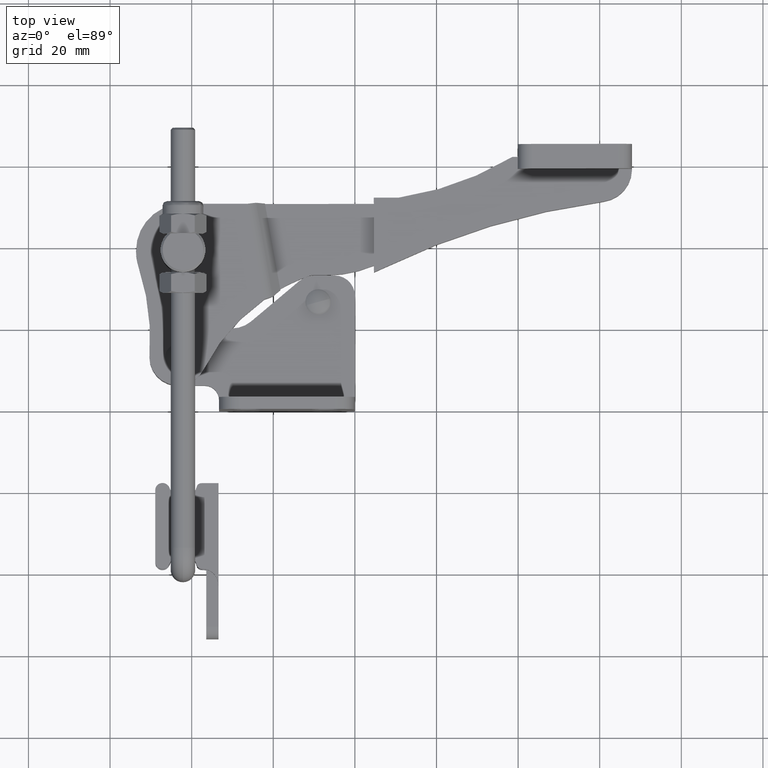
[diagram: clean part render]
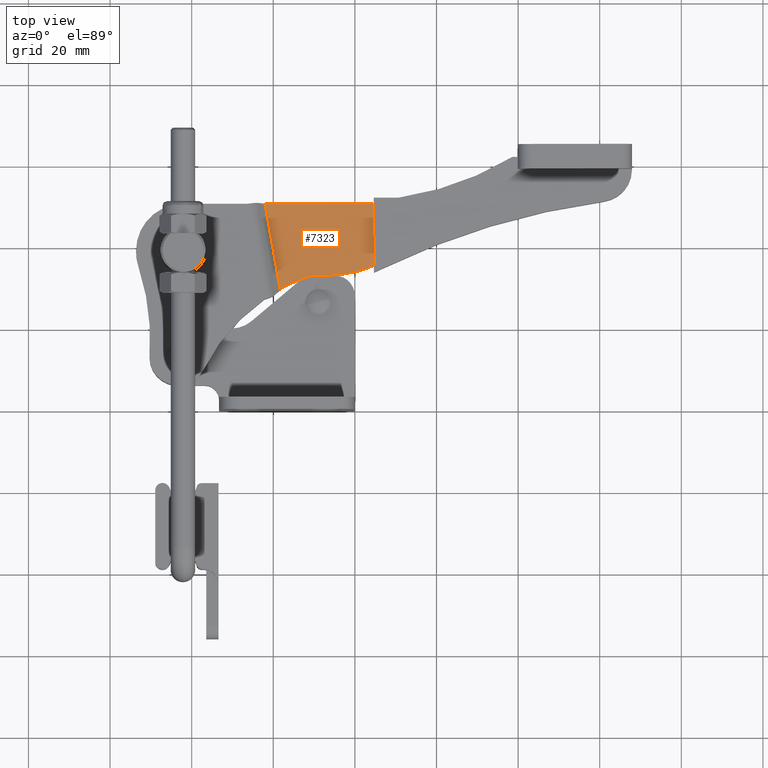
[diagram: same view with one face highlighted and labeled with its STEP entity id]
A machine part, top view. The second image highlights one B-rep face of the part: STEP entity #7323.
In plain terms, the highlighted planar face has unit normal (-0, 0, 1).
Its self-contained STEP definition (entity closure, byte-faithful):
#348 = DIRECTION ( 'NONE',  ( 0.9999982834972985800, 0.001852836327524323300, 1.502370815768580200E-016 ) ) ;
#386 = LINE ( 'NONE', #8822, #4557 ) ;
#573 = CARTESIAN_POINT ( 'NONE',  ( -6.980840812610751700, 33.02972328104660000, 3.000603067013369400 ) ) ;
#886 = ORIENTED_EDGE ( 'NONE', *, *, #10741, .T. ) ;
#1051 = EDGE_CURVE ( 'NONE', #8544, #5630, #9285, .T. ) ;
#1091 = AXIS2_PLACEMENT_3D ( 'NONE', #9653, #1728, #5533 ) ;
#1098 = LINE ( 'NONE', #8549, #7463 ) ;
#1205 = VECTOR ( 'NONE', #348, 999.9999999999998900 ) ;
#1728 = DIRECTION ( 'NONE',  ( -9.591738980984124800E-017, 6.429573967687639800E-016, 1.000000000000000000 ) ) ;
#1928 = DIRECTION ( 'NONE',  ( -0.9999982834972985800, -0.001852836327522637100, -1.502370815768580200E-016 ) ) ;
#2006 = DIRECTION ( 'NONE',  ( 9.591738980984124800E-017, -6.429573967687639800E-016, -1.000000000000000000 ) ) ;
#2448 = EDGE_CURVE ( 'NONE', #8292, #4905, #8474, .T. ) ;
#2465 = CARTESIAN_POINT ( 'NONE',  ( -18.30231359614690900, 29.67782441122381700, 3.000603060188994100 ) ) ;
#3066 = DIRECTION ( 'NONE',  ( -9.591738980984138400E-017, 6.429573967687638800E-016, 1.000000000000000000 ) ) ;
#3591 = DIRECTION ( 'NONE',  ( 0.1754725671797750200, -0.9844843209352496200, 6.430378598908525000E-016 ) ) ;
#4152 = CARTESIAN_POINT ( 'NONE',  ( 10.92670375759658600, 50.56293312596506000, 3.000603067013356600 ) ) ;
#4249 = ORIENTED_EDGE ( 'NONE', *, *, #8918, .T. ) ;
#4500 = CARTESIAN_POINT ( 'NONE',  ( -10.80083425557042200, 33.02264544627546200, 3.000603067013369400 ) ) ;
#4557 = VECTOR ( 'NONE', #9666, 1000.000000000000100 ) ;
#4856 = CARTESIAN_POINT ( 'NONE',  ( 4.668565289365517400, 35.40734058094524500, 3.000603067013360500 ) ) ;
#4905 = VERTEX_POINT ( 'NONE', #5342 ) ;
#5342 = CARTESIAN_POINT ( 'NONE',  ( -22.01395614284477600, 50.50189936988434900, 3.000603060188980400 ) ) ;
#5533 = DIRECTION ( 'NONE',  ( 0.9999982834972984700, 0.001852836327522386200, 1.011922027653138000E-016 ) ) ;
#5574 = CARTESIAN_POINT ( 'NONE',  ( 59.91107435547795700, 59.04370770456213100, 3.000603067013379200 ) ) ;
#5630 = VERTEX_POINT ( 'NONE', #4856 ) ;
#5921 = EDGE_CURVE ( 'NONE', #4905, #8017, #1098, .T. ) ;
#6342 = AXIS2_PLACEMENT_3D ( 'NONE', #6998, #2006, #7839 ) ;
#6840 = VERTEX_POINT ( 'NONE', #8278 ) ;
#6971 = CARTESIAN_POINT ( 'NONE',  ( 4.640505989338531200, 50.55128581038540100, 3.000603067013367200 ) ) ;
#6998 = CARTESIAN_POINT ( 'NONE',  ( 4.339675622072561200, -11.01744833933076800, 3.000603067013397400 ) ) ;
#7209 = ORIENTED_EDGE ( 'NONE', *, *, #1051, .T. ) ;
#7323 = ADVANCED_FACE ( 'NONE', ( #8837 ), #8064, .T. ) ;
#7463 = VECTOR ( 'NONE', #3591, 999.9999999999998900 ) ;
#7837 = LINE ( 'NONE', #4500, #1205 ) ;
#7839 = DIRECTION ( 'NONE',  ( 0.9999982834972985800, 0.001852836327522494400, 9.312451556671720400E-017 ) ) ;
#7915 = AXIS2_PLACEMENT_3D ( 'NONE', #5574, #3066, #8888 ) ;
#8017 = VERTEX_POINT ( 'NONE', #2465 ) ;
#8064 = PLANE ( 'NONE',  #7915 ) ;
#8216 = VECTOR ( 'NONE', #1928, 1000.000000000000100 ) ;
#8278 = CARTESIAN_POINT ( 'NONE',  ( -10.80083425557042200, 33.02264544627546200, 3.000603067013369400 ) ) ;
#8292 = VERTEX_POINT ( 'NONE', #6971 ) ;
#8423 = ORIENTED_EDGE ( 'NONE', *, *, #10198, .T. ) ;
#8474 = LINE ( 'NONE', #4152, #8216 ) ;
#8544 = VERTEX_POINT ( 'NONE', #573 ) ;
#8549 = CARTESIAN_POINT ( 'NONE',  ( -20.96703082430035200, 44.62815182140756300, 3.000603067013372500 ) ) ;
#8822 = CARTESIAN_POINT ( 'NONE',  ( 4.624960692550618400, 58.94127140892774700, 3.000603067013373900 ) ) ;
#8837 = FACE_OUTER_BOUND ( 'NONE', #9885, .T. ) ;
#8888 = DIRECTION ( 'NONE',  ( 0.9999982834972985800, 0.001852836327522505300, 9.472593034560020300E-017 ) ) ;
#8918 = EDGE_CURVE ( 'NONE', #6840, #8544, #7837, .T. ) ;
#9166 = ORIENTED_EDGE ( 'NONE', *, *, #2448, .T. ) ;
#9285 = CIRCLE ( 'NONE', #1091, 29.99999999999998600 ) ;
#9511 = ORIENTED_EDGE ( 'NONE', *, *, #5921, .T. ) ;
#9653 = CARTESIAN_POINT ( 'NONE',  ( -7.036425902436416600, 63.02967178596555400, 3.000603067013341900 ) ) ;
#9666 = DIRECTION ( 'NONE',  ( -0.001852836327522378600, 0.9999982834972985800, -6.431340123549362000E-016 ) ) ;
#9885 = EDGE_LOOP ( 'NONE', ( #7209, #8423, #9166, #9511, #886, #4249 ) ) ;
#10144 = CIRCLE ( 'NONE', #6342, 46.56999999999997200 ) ;
#10198 = EDGE_CURVE ( 'NONE', #5630, #8292, #386, .T. ) ;
#10741 = EDGE_CURVE ( 'NONE', #8017, #6840, #10144, .T. ) ;